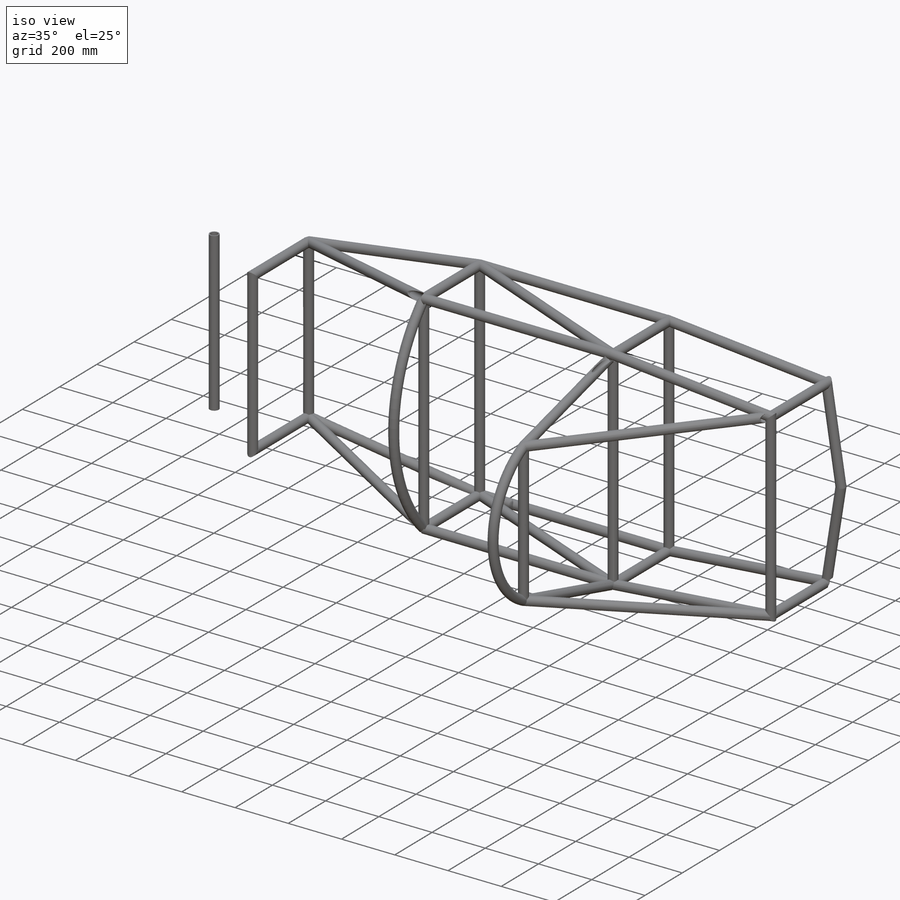
[diagram: iso view]
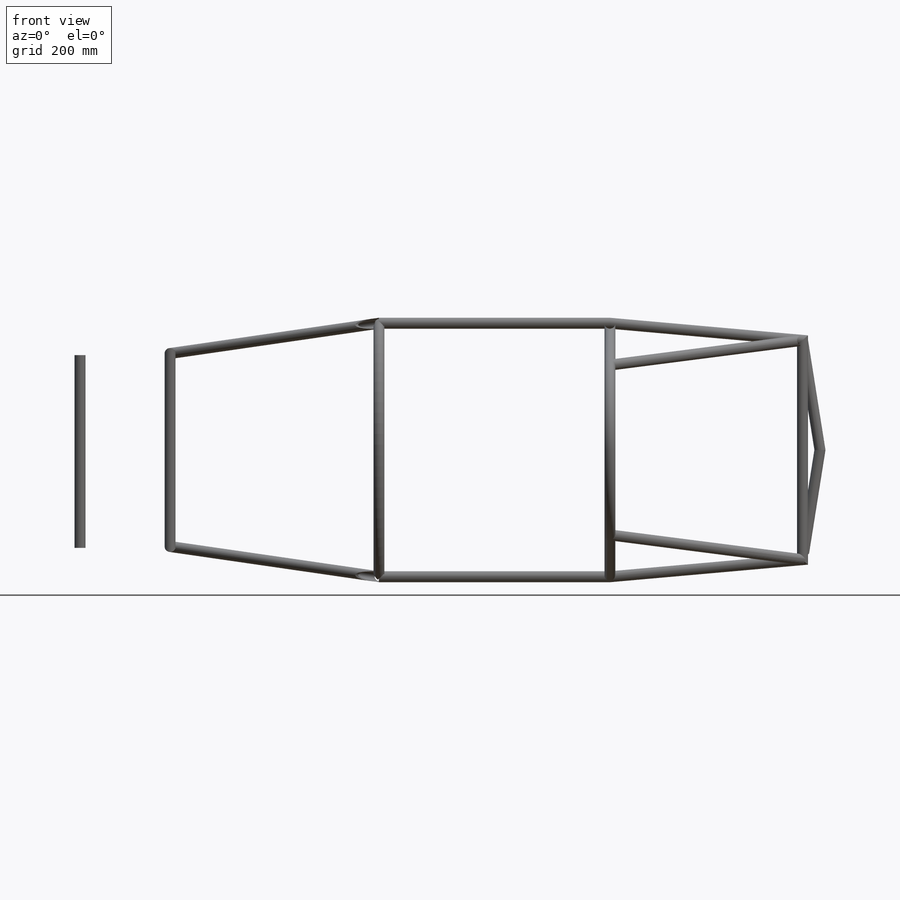
[diagram: front view]
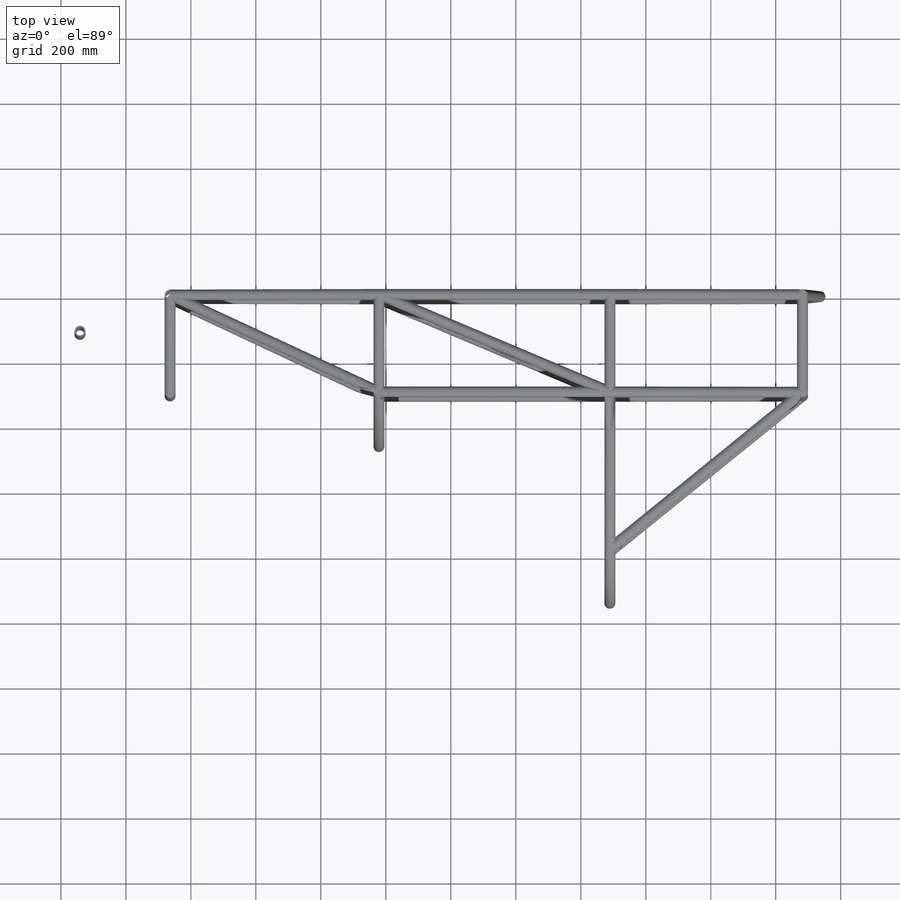
[diagram: top view]
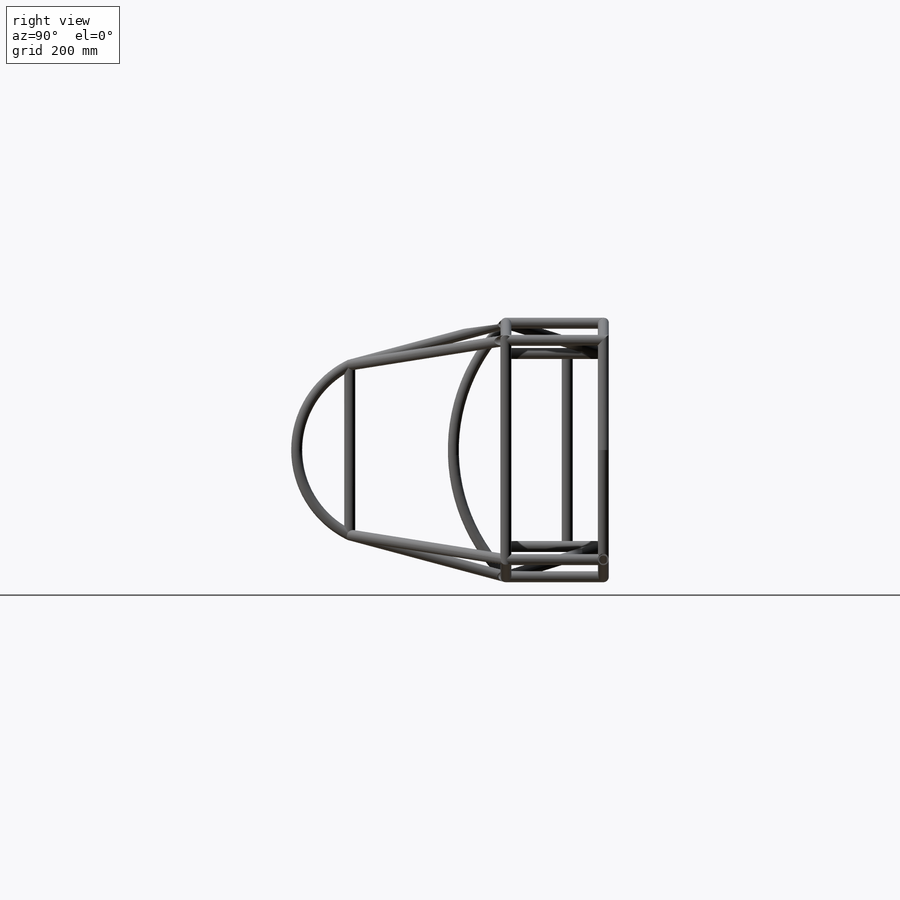
[diagram: right view]
SOLIDWORKS PART (.sldprt)
format: sldprt  version: not decoded by parser v0  size: 1,250,304 bytes
history: native  units: mm
features: sketch x19, plane x10, sweep x3, material x1, mirror x1 (+13 scaffold rows collapsed)
feature tree (47):
  scaffold x13  (default folders/planes/origin — collapsed)
  material  "Material <not specified>"
  sketch  "Sketch2"  dims[D1=2000.0mm D2=~297.029053mm D3=~390.07971mm]
  plane  "Plane1"  Offset=300mm
  sketch  "Sketch3"
  sketch  "3DSketch1"  dims[c1.D1=300.0mm c2.D1=~715.432575mm c3.D1=300.0mm c4.D1=~771.579221mm c5.D1=300.0mm c6.D1=300.0mm c7.D1=~4.502183mm c8.D1=300.0mm c9.D1=~771.579221mm c10.D1=300.0mm c11.D1=~715.432575mm c12.D1=300.0mm]
  sketch  "3DSketch2"  dims[c1.D1=300.0mm c2.D1=0.0mm]
  plane  "Plane2"
  sketch  "Sketch4"  dims[c1.D1=~497.311251mm c2.D1=75.0deg c2.D2=~201.726771mm c3.D2=75.0deg]
  sketch  "Sketch5"  dims[D1=~290.767119mm]
  sketch  "3DSketch3"  dims[c1.D1=~766.80246mm c2.D1=~999.924055mm c3.D1=~766.80246mm c4.D1=~54.635057mm c5.D1=~522.732173mm]
  plane  "Plane3"
  sketch  "Sketch6"  dims[D1=~551.656016mm]
  plane  "Plane4"  Offset=920mm
  sketch  "Sketch7"  dims[D1=~593.300609mm]
  sketch  "3DSketch4"  dims[D1=~163.967002mm]
  sketch  "3DSketch5"  dims[c1.D1=~657.836923mm c2.D1=~780.15942mm c3.D1=~594.058107mm c4.D1=~710.86883mm c5.D1=~780.15942mm c6.D1=~710.86883mm c7.D1=~595.151451mm c8.D1=~674.982388mm c9.D1=~595.151451mm]
  sketch  "3DSketch7"  dims[c1.D1=~594.058107mm c2.D1=~780.15942mm c3.D1=~710.86883mm c4.D1=~595.151451mm c5.D1=~674.982388mm c6.D1=~595.151451mm c7.D1=~710.86883mm c8.D1=~780.15942mm]
  plane  "Plane5"
  sketch  "Sketch11"  dims[In_dia=25.7mm Out_dia=33.7mm]
  plane  "Plane6"
  sketch  "Sketch12"  dims[D1=~33.486454mm]
  sweep  "Sweep1"
  plane  "Plane7"
  plane  "Plane8"
  sketch  "Sketch15"  dims[D1=~31.571499mm]
  sweep  "Sweep2"
  sketch  "3DSketch4<6>"
  plane  "Plane9"
  sketch  "Sketch16"  dims[D1=~30.903688mm]
  sweep  "Sweep3"
  sketch  "3DSketch8"
  plane  "Plane12"
  sketch  "Sketch19"  dims[D1=~28.591114mm]
  mirror  "Mirror1"
decode coverage: 16 of 23 modeling features carry decoded parameters
note: ~ marks probable driven/reference dimensions
note: suppression state not decoded; provenance and decode notes live in map.json
